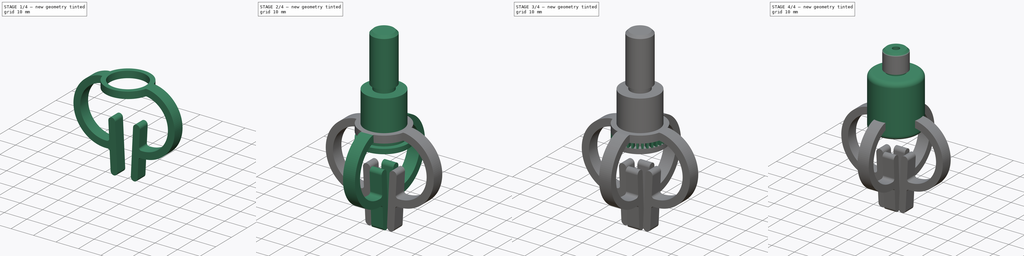
[diagram: build sequence overview — one tinted view per stage of 4, left to right]
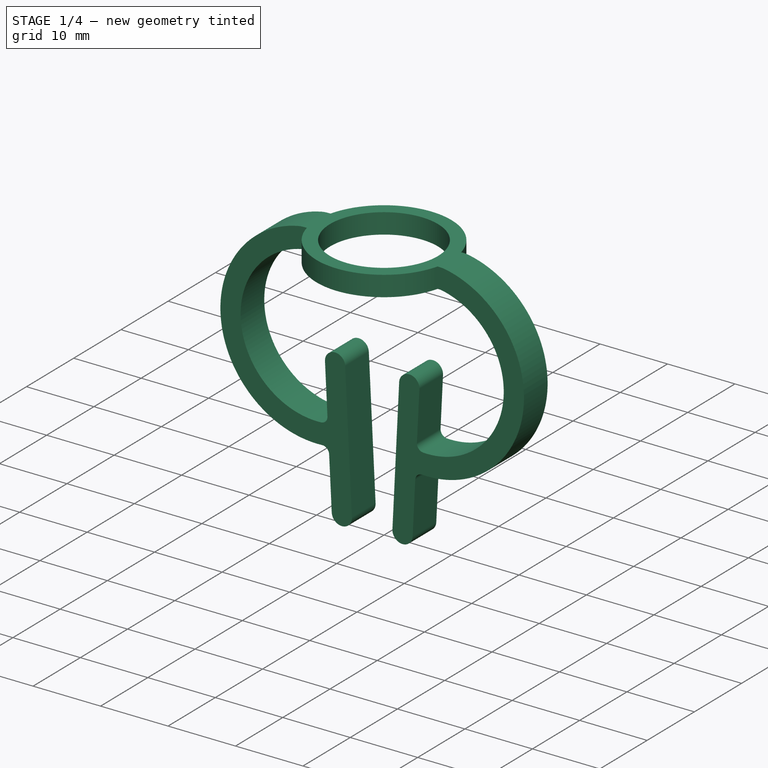
[diagram: stage 1 of 4 — iso view after this stage's code; geometry added in this stage tinted green]
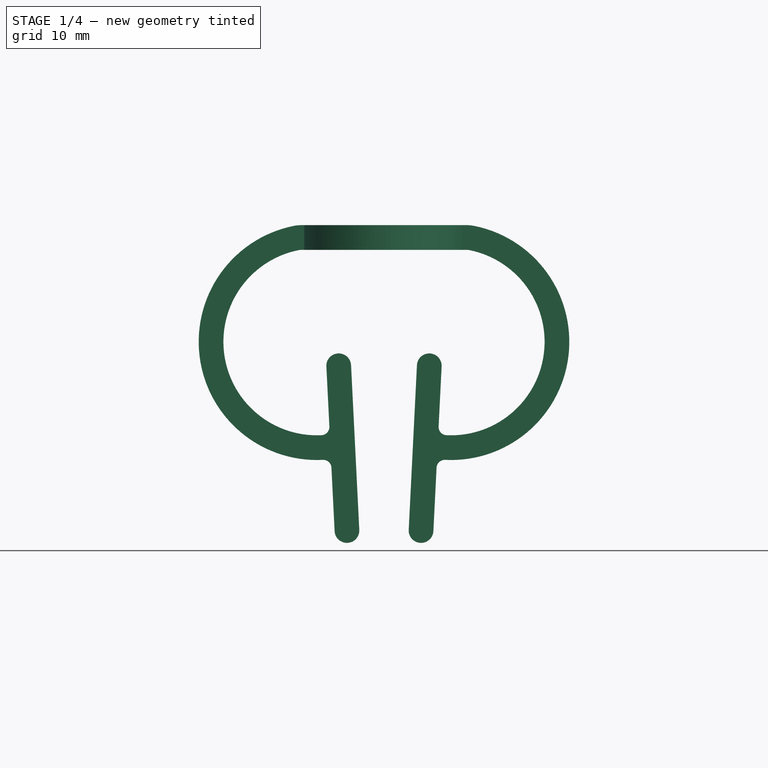
[diagram: stage 1 of 4 — front view after this stage's code; geometry added in this stage tinted green]
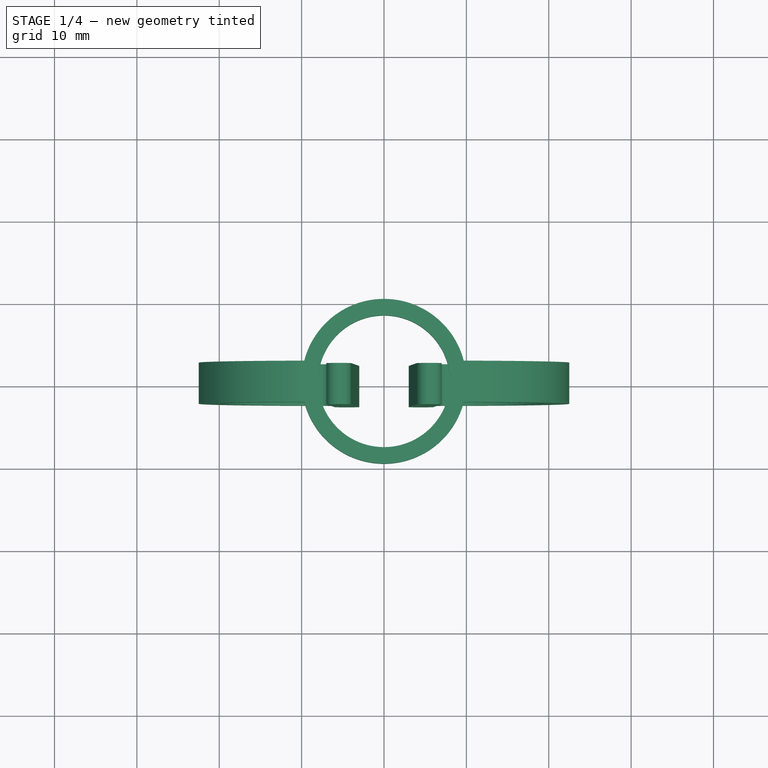
[diagram: stage 1 of 4 — top view after this stage's code; geometry added in this stage tinted green]
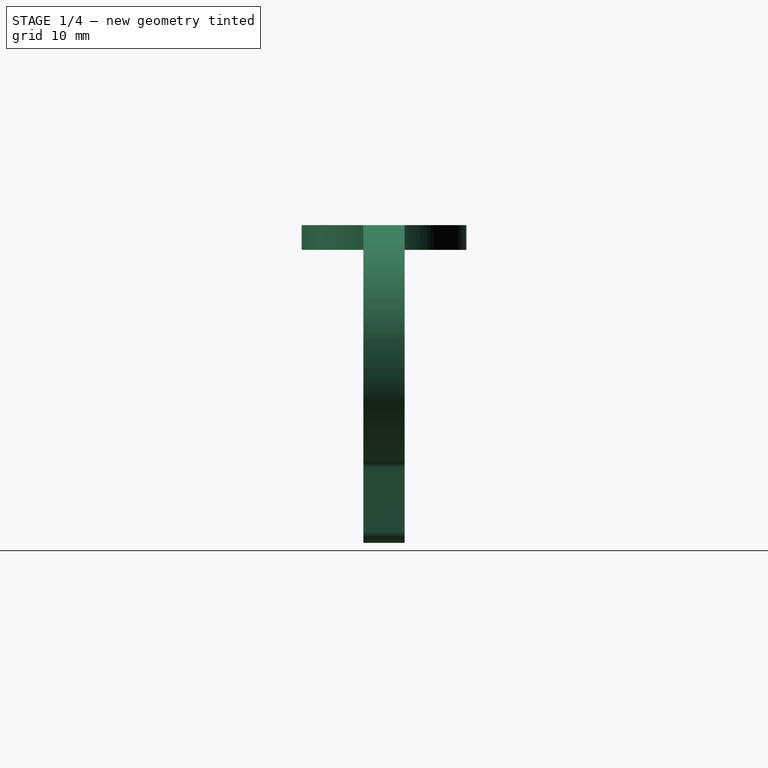
[diagram: stage 1 of 4 — right view after this stage's code; geometry added in this stage tinted green]
FCSTD DOCUMENT  (FreeCAD 1.0R39109 (Git))
Label: press machin adapters
License: All rights reserved
LicenseURL: https://en.wikipedia.org/wiki/All_rights_reserved
objects: Sketcher::SketchObject×6, PartDesign::Pad×4, PartDesign::Revolution×3, PartDesign::Body×3, PartDesign::PolarPattern×2, PartDesign::Mirrored×2, PartDesign::SubShapeBinder×1, App::DocumentObjectGroup×1
note: 45 computed .brp shape members not serialized (recipe doc carries the construction recipe); baked Part::Feature solids carry a one-line shape summary decoded from their .brp

FEATURE [PartDesign::Body] Body002  label="leather punch arbor"
  AllowCompound = true
  Group = -> [Sketch001,Revolution001,Sketch002,Pad,PolarPattern]
  Origin = -> Origin002
  Tip = -> PolarPattern
FEATURE [PartDesign::SubShapeBinder] Binder
  BindCopyOnChange = 0
  BindMode = 0
  ClaimChildren = false
  Context = -> Body003 [Binder.]
  Fuse = false
  MakeFace = true
  OffsetFill = false
  OffsetIntersection = false
  OffsetJoinType = 0
  OffsetOpenResult = false
  PartialLoad = false
  Placement = pos=(0,0,2) rot=(0,0,1;0.087266rad)
  Refine = true
  Relative = true
  Support = -> [Body002[Sketch002.]]
  _Version = 2
FEATURE [Sketcher::SketchObject] Sketch003
  ArcFitTolerance = 1e-06
  AttachmentSupport = -> [XZ_Plane003]
  FullyConstrained = true
  MakeInternals = false
  MapMode = 5
  Placement = pos=(0,0,0) rot=(1,0,0;1.5708rad)
  sketch-geometry (4):
    g0: LineSegment StartX=8 StartY=7 StartZ=0 EndX=8 EndY=4 EndZ=0
    g1: LineSegment StartX=8 StartY=4 StartZ=0 EndX=10 EndY=4 EndZ=0
    g2: LineSegment StartX=10 StartY=4 StartZ=0 EndX=10 EndY=7 EndZ=0
    g3: LineSegment StartX=10 StartY=7 StartZ=0 EndX=8 EndY=7 EndZ=0
  constraints (12):
    c: Coincident(g0,g1)
    c: Coincident(g1,g2)
    c: Coincident(g2,g3)
    c: Coincident(g3,g0)
    c: Vertical(g0)
    c: Vertical(g2)
    c: Horizontal(g1)
    c: Horizontal(g3)
    c: DistanceX(g-1,g0) = 8
    c: DistanceY(g2,g2) = 3
    c: DistanceX(g-1,g2) = 10
    c: DistanceY(g-1,g0) = 4
FEATURE [PartDesign::Revolution] Revolution002
  Angle = 360
  Angle2 = 60
  Axis = (0,2e-16,1)
  Base = (0,0,0)
  Placement = pos=(0,0,0) rot=(1,0,0;1.5708rad)
  Profile = -> Sketch003
  ReferenceAxis = -> Sketch003 [V_Axis]
  Refine = true
  Reversed = true
  Suppressed = false
  Type = 0
FEATURE [Sketcher::SketchObject] Sketch004
  ArcFitTolerance = 1e-06
  AttachmentSupport = -> [XZ_Plane003]
  ExternalGeometry = -> [Sketch003]
  FullyConstrained = true
  MakeInternals = false
  MapMode = 5
  Placement = pos=(0,0,0) rot=(1,0,0;1.5708rad)
  sketch-geometry (18):
    g0: ArcOfCircle CenterX=8.14673 CenterY=-7.16527 CenterZ=0 NormalX=0 NormalY=0 NormalZ=1 AngleXU=0 Radius=14.3508 StartAngle=4.66243 EndAngle=7.65447
    g1: ArcOfCircle [constr] CenterX=7.505 CenterY=-20 CenterZ=0 NormalX=0 NormalY=0 NormalZ=1 AngleXU=0 Radius=1.5 StartAngle=1.52084 EndAngle=4.66243
    g2: ArcOfCircle CenterX=8.14673 CenterY=-7.16527 CenterZ=0 NormalX=0 NormalY=0 NormalZ=1 AngleXU=0 Radius=11.3508 StartAngle=4.66243 EndAngle=7.65447
    g3: ArcOfCircle CenterX=5.49813 CenterY=-10.0749 CenterZ=0 NormalX=0 NormalY=0 NormalZ=1 AngleXU=0 Radius=1.5 StartAngle=6.23323 EndAngle=9.37482
    g4: ArcOfCircle CenterX=4.49813 CenterY=-30.0749 CenterZ=0 NormalX=0 NormalY=0 NormalZ=1 AngleXU=0 Radius=1.5 StartAngle=3.09163 EndAngle=6.23323
    g5: LineSegment [constr] StartX=6.99626 StartY=-10.1498 StartZ=0 EndX=5.99626 EndY=-30.1498 EndZ=0
    g6: LineSegment StartX=4 StartY=-10 StartZ=0 EndX=3 EndY=-30 EndZ=0
    g7: LineSegment [constr] StartX=3 StartY=-30 StartZ=0 EndX=4 EndY=-30 EndZ=0
    g8: LineSegment [constr] StartX=4 StartY=-30 StartZ=0 EndX=4 EndY=-10 EndZ=0
    g9: ArcOfCircle CenterX=7.38015 CenterY=-22.4969 CenterZ=0 NormalX=0 NormalY=0 NormalZ=1 AngleXU=0 Radius=1 StartAngle=1.52084 EndAngle=3.09163
    g10: ArcOfCircle CenterX=7.62984 CenterY=-17.5031 CenterZ=0 NormalX=0 NormalY=0 NormalZ=1 AngleXU=0 Radius=1 StartAngle=3.09163 EndAngle=4.66243
    g11: LineSegment StartX=6.63109 StartY=-17.4532 StartZ=0 EndX=6.99626 EndY=-10.1498 EndZ=0
    g12: LineSegment StartX=6.3814 StartY=-22.4469 StartZ=0 EndX=5.99626 EndY=-30.1498 EndZ=0
    g13: LineSegment StartX=8 StartY=4 StartZ=0 EndX=8 EndY=7 EndZ=0
    g14: LineSegment StartX=8 StartY=7 StartZ=0 EndX=10 EndY=7 EndZ=0
    g15: LineSegment StartX=10 StartY=4 StartZ=0 EndX=8 EndY=4 EndZ=0
    g16: ArcOfCircle CenterX=10 CenterY=2 CenterZ=0 NormalX=0 NormalY=0 NormalZ=1 AngleXU=0 Radius=2 StartAngle=1.37128 EndAngle=1.5708
    g17: ArcOfCircle CenterX=10 CenterY=2 CenterZ=0 NormalX=0 NormalY=0 NormalZ=1 AngleXU=0 Radius=5 StartAngle=1.37128 EndAngle=1.5708
  constraints (44):
    c: Coincident(g0,g2)
    c: Tangent(g2,g1) = 1.5708
    c: Tangent(g0,g1) = -1.5708
    c: Tangent(g3,g5) = 1.5708
    c: Tangent(g3,g6) = -1.5708
    c: Tangent(g4,g5) = 1.5708
    c: Tangent(g4,g6) = -1.5708
    c: Equal(g3,g4)
    c: Distance(g6,g-1) = 10
    c: Distance(g4,g-1) = 30
    c: Coincident(g7,g4)
    c: Horizontal(g7)
    c: Coincident(g8,g7)
    c: Coincident(g8,g3)
    c: Vertical(g8)
    c: Distance(g7,g7) = 1
    c: DistanceY(g1,g-1) = 20
    c: Coincident(g10,g1)
    c: Tangent(g10,g5) = -1.5708
    c: Tangent(g10,g2)
    c: Tangent(g9,g0) = 1.5708
    c: Tangent(g9,g5) = -1.5708
    c: Equal(g9,g10)
    c: Radius(g9) = 1
    c: Coincident(g11,g10)
    c: Coincident(g11,g3)
    c: Coincident(g12,g4)
    c: Coincident(g12,g9)
    c: Distance(g4,g-2) = 3
    c: Radius(g1) = 1.5
    c: Vertical(g13)
    c: Coincident(g14,g13)
    c: Coincident(g14,g-4)
    c: Coincident(g15,g-3)
    c: Coincident(g15,g13)
    c: Horizontal(g15)
    c: Horizontal(g14)
    c: Radius(g3) = 1.5
    c: Tangent(g17,g14) = 1.5708
    c: Tangent(g17,g0) = -1.5708
    c: Tangent(g16,g15) = -1.5708
    c: Tangent(g16,g2) = -1.5708
    c: Radius(g16) = 2
    c: Distance(g14,g14) = 2
FEATURE [PartDesign::Pad] Pad001
  BaseFeature = -> Revolution002
  Direction = (0,-1,2e-16)
  Length = 5
  Length2 = 10
  Midplane = true
  Placement = pos=(0,0,0) rot=(1,0,0;1.5708rad)
  Profile = -> Sketch004
  ReferenceAxis = -> Sketch004 [N_Axis]
  Refine = true
  Suppressed = false
  Type = 0
FEATURE [PartDesign::Mirrored] Mirrored
  BaseFeature = -> Pad001
  MirrorPlane = -> Sketch004 [V_Axis]
  Originals = -> [Pad001]
  Placement = pos=(0,0,0) rot=(1,0,0;1.5708rad)
  Refine = true
  Suppressed = false
  TransformMode = 0
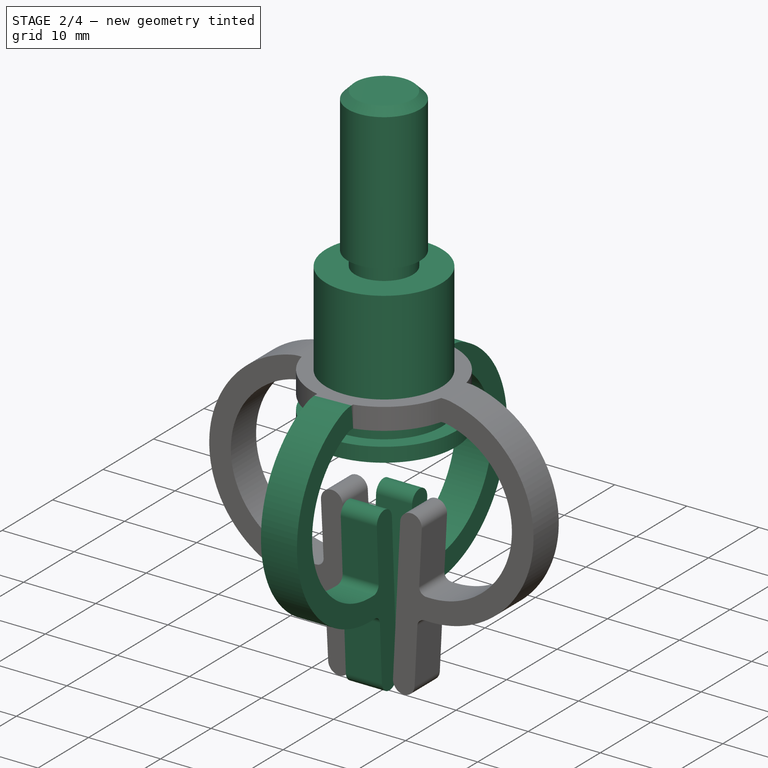
[diagram: stage 2 of 4 — iso view after this stage's code; geometry added in this stage tinted green]
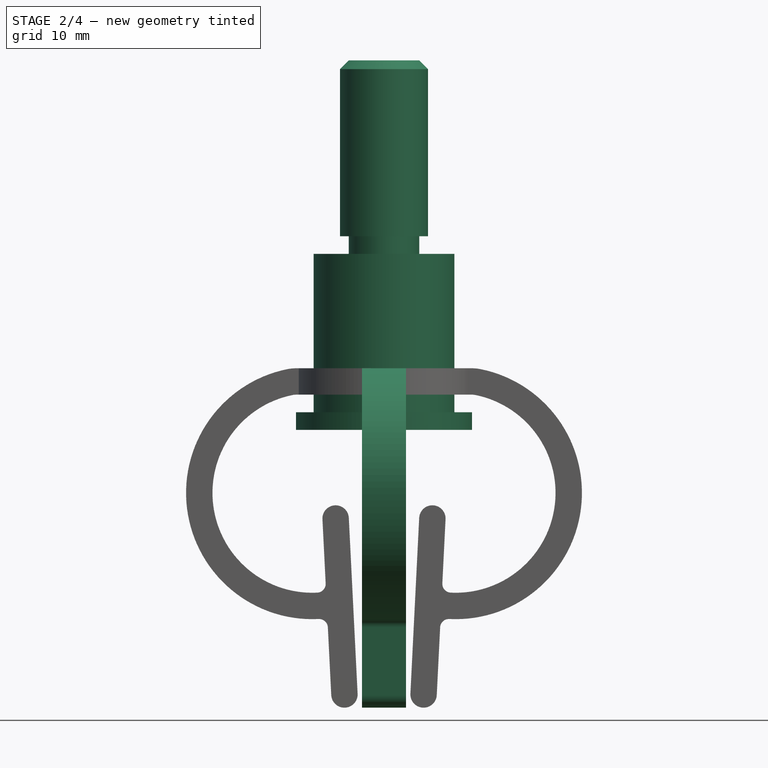
[diagram: stage 2 of 4 — front view after this stage's code; geometry added in this stage tinted green]
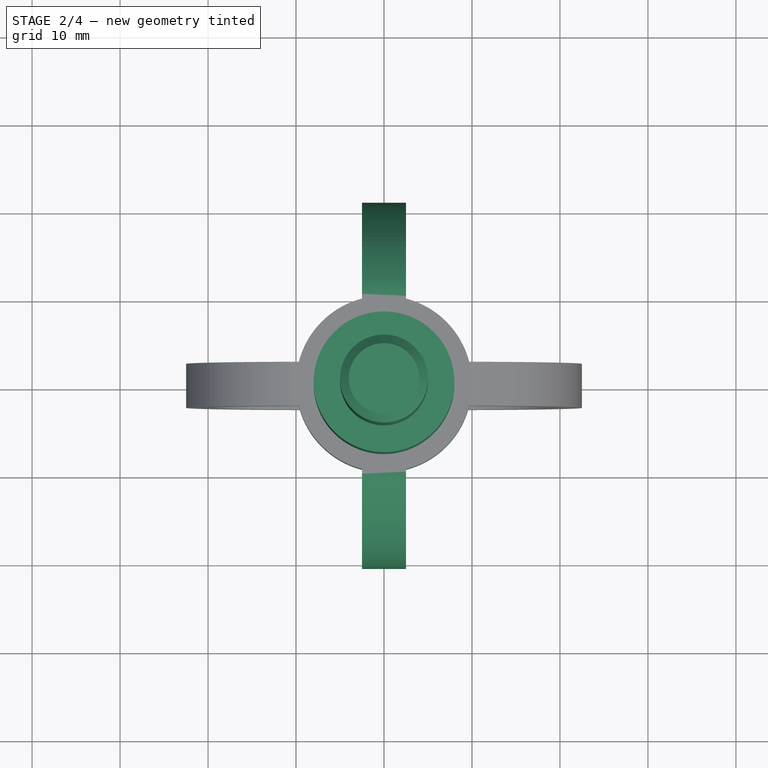
[diagram: stage 2 of 4 — top view after this stage's code; geometry added in this stage tinted green]
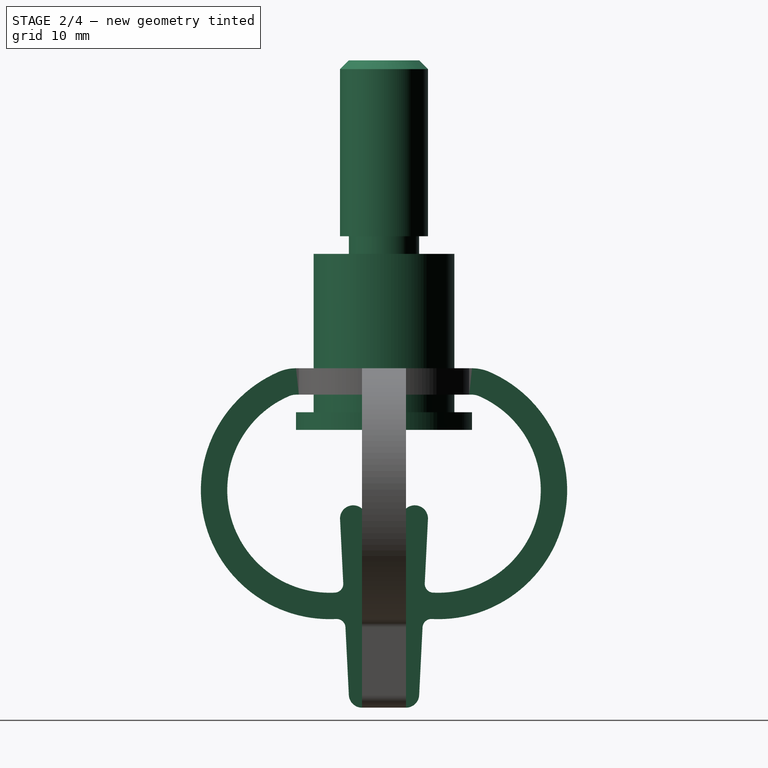
[diagram: stage 2 of 4 — right view after this stage's code; geometry added in this stage tinted green]
FEATURE [PartDesign::Body] Body  label="hand drill"
  AllowCompound = false
  Group = -> [Sketch,Revolution]
  Origin = -> Origin
  Tip = -> Revolution
FEATURE [Sketcher::SketchObject] Sketch001
  ArcFitTolerance = 1e-06
  AttachmentSupport = -> [XZ_Plane002]
  FullyConstrained = true
  MakeInternals = false
  MapMode = 5
  Placement = pos=(0,0,0) rot=(1,0,0;1.5708rad)
  sketch-geometry (11):
    g0: LineSegment StartX=0 StartY=42 StartZ=0 EndX=4 EndY=42 EndZ=0
    g1: LineSegment StartX=4 StartY=42 StartZ=0 EndX=5 EndY=41 EndZ=0
    g2: LineSegment StartX=5 StartY=41 StartZ=0 EndX=5 EndY=22 EndZ=0
    g3: LineSegment StartX=5 StartY=22 StartZ=0 EndX=4 EndY=22 EndZ=0
    g4: LineSegment StartX=4 StartY=22 StartZ=0 EndX=4 EndY=20 EndZ=0
    g5: LineSegment StartX=0 StartY=0 StartZ=0 EndX=0 EndY=42 EndZ=0
    g6: LineSegment StartX=0 StartY=0 StartZ=0 EndX=10 EndY=0 EndZ=0
    g7: LineSegment StartX=4 StartY=20 StartZ=0 EndX=8 EndY=20 EndZ=0
    g8: LineSegment StartX=8 StartY=20 StartZ=0 EndX=8 EndY=2 EndZ=0
    g9: LineSegment StartX=8 StartY=2 StartZ=0 EndX=10 EndY=2 EndZ=0
    g10: LineSegment StartX=10 StartY=2 StartZ=0 EndX=10 EndY=0 EndZ=0
  constraints (33):
    c: PointOnObject(g0,g-2)
    c: Coincident(g0,g1)
    c: Coincident(g1,g2)
    c: Vertical(g2)
    c: Coincident(g2,g3)
    c: Coincident(g3,g4)
    c: Horizontal(g0)
    c: Horizontal(g3)
    c: Vertical(g4)
    c: DistanceX(g0,g0) = 4
    c: Angle(g1) = -0.785398
    c: Horizontal(g6)
    c: Horizontal(g7)
    c: Distance(g2,g0) = 20
    c: Coincident(g4,g7)
    c: Coincident(g5,g0)
    c: PointOnObject(g5,g-2)
    c: Distance(g3,g-2) = 4
    c: Distance(g2,g-2) = 5
    c: PointOnObject(g6,g-1)
    c: DistanceY(g6,g7) = 20
    c: DistanceX(g6,g6) = 10
    c: Coincident(g6,g5)
    c: DistanceY(g4,g4) = 2
    c: Coincident(g8,g7)
    c: Vertical(g8)
    c: Coincident(g9,g8)
    c: Coincident(g10,g9)
    c: Vertical(g10)
    c: Horizontal(g9)
    c: Coincident(g6,g10)
    c: Distance(g9,g9) = 2
    c: DistanceY(g10,g10) = 2
FEATURE [PartDesign::Revolution] Revolution001
  Angle = 360
  Angle2 = 60
  Axis = (0,2e-16,1)
  Base = (0,0,0)
  Placement = pos=(0,0,0) rot=(1,0,0;1.5708rad)
  Profile = -> Sketch001
  ReferenceAxis = -> Sketch001 [V_Axis]
  Refine = true
  Reversed = true
  Suppressed = false
  Type = 0
FEATURE [Sketcher::SketchObject] Sketch005
  ArcFitTolerance = 1e-06
  AttachmentSupport = -> [YZ_Plane003]
  FullyConstrained = true
  MakeInternals = false
  MapMode = 5
  Placement = pos=(0,0,0) rot=(0.57735,0.57735,0.57735;2.0944rad)
  sketch-geometry (18):
    g0: ArcOfCircle CenterX=-3.49813 CenterY=-10.0749 CenterZ=0 NormalX=0 NormalY=0 NormalZ=1 AngleXU=0 Radius=1.5 StartAngle=0.0499584 EndAngle=3.19155
    g1: ArcOfCircle CenterX=-2.49813 CenterY=-30.0749 CenterZ=0 NormalX=0 NormalY=0 NormalZ=1 AngleXU=0 Radius=1.5 StartAngle=3.19155 EndAngle=6.33314
    g2: LineSegment StartX=-2 StartY=-10 StartZ=0 EndX=-1 EndY=-30 EndZ=0
    g3: LineSegment [constr] StartX=-4.99626 StartY=-10.1498 StartZ=0 EndX=-3.99626 EndY=-30.1498 EndZ=0
    g4: ArcOfCircle CenterX=-6.16198 CenterY=-6.86044 CenterZ=0 NormalX=0 NormalY=0 NormalZ=1 AngleXU=0 Radius=14.656 StartAngle=1.97956 EndAngle=4.76235
    g5: ArcOfCircle [constr] CenterX=-5.505 CenterY=-20 CenterZ=0 NormalX=0 NormalY=0 NormalZ=1 AngleXU=0 Radius=1.5 StartAngle=4.76235 EndAngle=7.90394
    g6: ArcOfCircle CenterX=-6.16198 CenterY=-6.86044 CenterZ=0 NormalX=0 NormalY=0 NormalZ=1 AngleXU=0 Radius=11.656 StartAngle=1.97956 EndAngle=4.76235
    g7: LineSegment [constr] StartX=-2 StartY=-10 StartZ=0 EndX=-2 EndY=-30 EndZ=0
    g8: LineSegment [constr] StartX=-2 StartY=-30 StartZ=0 EndX=-1 EndY=-30 EndZ=0
    g9: ArcOfCircle CenterX=-5.38015 CenterY=-22.4969 CenterZ=0 NormalX=0 NormalY=0 NormalZ=1 AngleXU=0 Radius=1 StartAngle=0.0499584 EndAngle=1.62076
    g10: ArcOfCircle CenterX=-5.62984 CenterY=-17.5031 CenterZ=0 NormalX=0 NormalY=0 NormalZ=1 AngleXU=0 Radius=1 StartAngle=4.76235 EndAngle=6.33314
    g11: LineSegment StartX=-8 StartY=4 StartZ=0 EndX=-10 EndY=4 EndZ=0
    g12: LineSegment StartX=-8 StartY=7 StartZ=0 EndX=-10 EndY=7 EndZ=0
    g13: LineSegment StartX=-8 StartY=7 StartZ=0 EndX=-8 EndY=4 EndZ=0
    g14: ArcOfCircle CenterX=-10 CenterY=2 CenterZ=0 NormalX=0 NormalY=0 NormalZ=1 AngleXU=0 Radius=5 StartAngle=1.5708 EndAngle=1.97956
    g15: ArcOfCircle CenterX=-10 CenterY=2 CenterZ=0 NormalX=0 NormalY=0 NormalZ=1 AngleXU=0 Radius=2 StartAngle=1.5708 EndAngle=1.97956
    g16: LineSegment StartX=-4.63109 StartY=-17.4532 StartZ=0 EndX=-4.99626 EndY=-10.1498 EndZ=0
    g17: LineSegment StartX=-4.3814 StartY=-22.4469 StartZ=0 EndX=-3.99626 EndY=-30.1498 EndZ=0
  constraints (44):
    c: Tangent(g0,g2) = 1.5708
    c: Tangent(g0,g3) = -1.5708
    c: Tangent(g1,g2) = 1.5708
    c: Tangent(g1,g3) = -1.5708
    c: Equal(g0,g1)
    c: Coincident(g4,g6)
    c: Tangent(g6,g5) = 1.5708
    c: Tangent(g4,g5) = -1.5708
    c: DistanceY(g5,g-1) = 20
    c: Distance(g0,g-1) = 10
    c: Distance(g1,g-1) = 30
    c: Coincident(g7,g0)
    c: Vertical(g7)
    c: Coincident(g8,g7)
    c: Coincident(g8,g1)
    c: Horizontal(g8)
    c: Distance(g8,g8) = 1
    c: Coincident(g10,g5)
    c: Tangent(g10,g6)
    c: Tangent(g10,g3) = 1.5708
    c: Tangent(g9,g4) = 1.5708
    c: Tangent(g9,g3) = 1.5708
    c: Equal(g9,g10)
    c: Radius(g10) = 1
    c: Distance(g1,g-2) = 1
    c: Radius(g0) = 1.5
    c: Radius(g5) = 1.5
    c: PointOnObject(g11,g-4)
    c: PointOnObject(g12,g-3)
    c: Coincident(g13,g12)
    c: Coincident(g13,g11)
    c: Vertical(g13)
    c: Coincident(g-4,g11)
    c: Tangent(g14,g4) = -1.5708
    c: Tangent(g12,g14) = -1.5708
    c: Coincident(g12,g-3)
    c: Tangent(g15,g11) = -1.5708
    c: Tangent(g15,g6) = -1.5708
    c: Radius(g15) = 2
    c: Distance(g12,g12) = 2
    c: Coincident(g16,g0)
    c: Coincident(g16,g10)
    c: Coincident(g17,g9)
    c: Coincident(g17,g1)
FEATURE [PartDesign::Pad] Pad002
  BaseFeature = -> Mirrored
  Direction = (1,0,0)
  Length = 5
  Length2 = 10
  Midplane = true
  Placement = pos=(0,0,0) rot=(1,0,0;1.5708rad)
  Profile = -> Sketch005
  ReferenceAxis = -> Sketch005 [N_Axis]
  Refine = true
  Suppressed = false
  Type = 0
FEATURE [PartDesign::Mirrored] Mirrored001
  BaseFeature = -> Pad002
  MirrorPlane = -> XZ_Plane003
  Originals = -> [Pad002]
  Placement = pos=(0,0,0) rot=(1,0,0;1.5708rad)
  Refine = true
  Suppressed = false
  TransformMode = 0
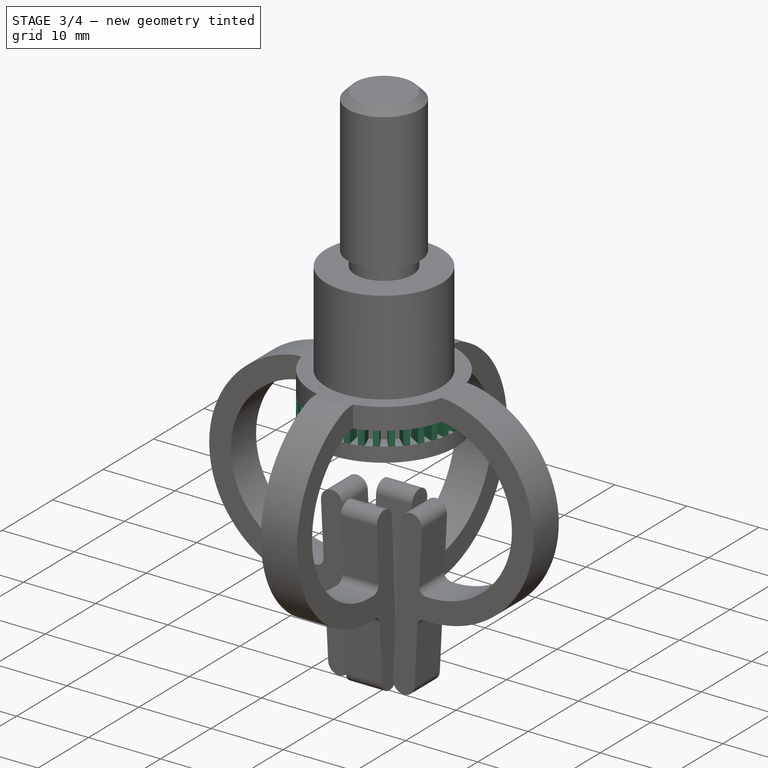
[diagram: stage 3 of 4 — iso view after this stage's code; geometry added in this stage tinted green]
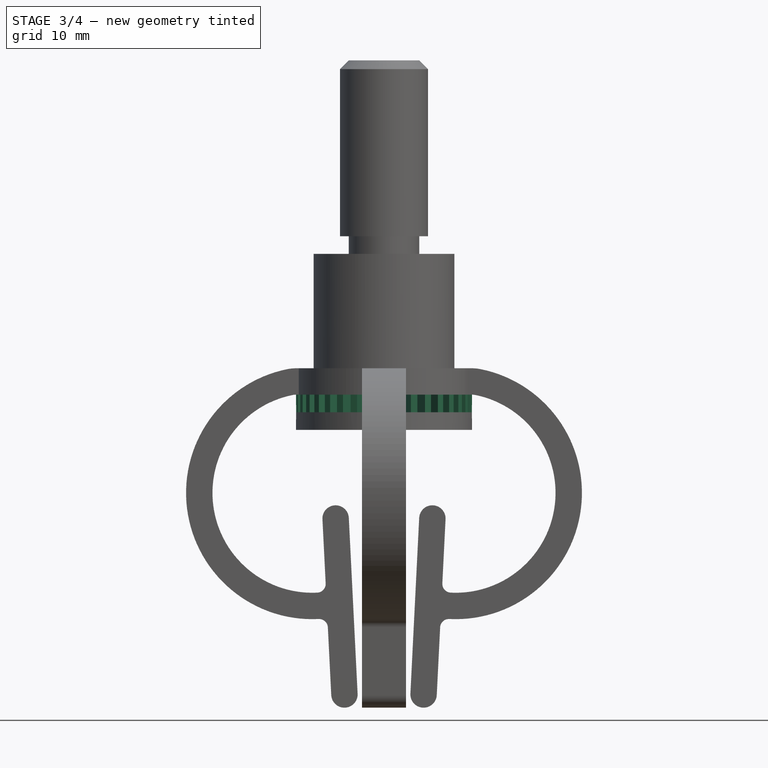
[diagram: stage 3 of 4 — front view after this stage's code; geometry added in this stage tinted green]
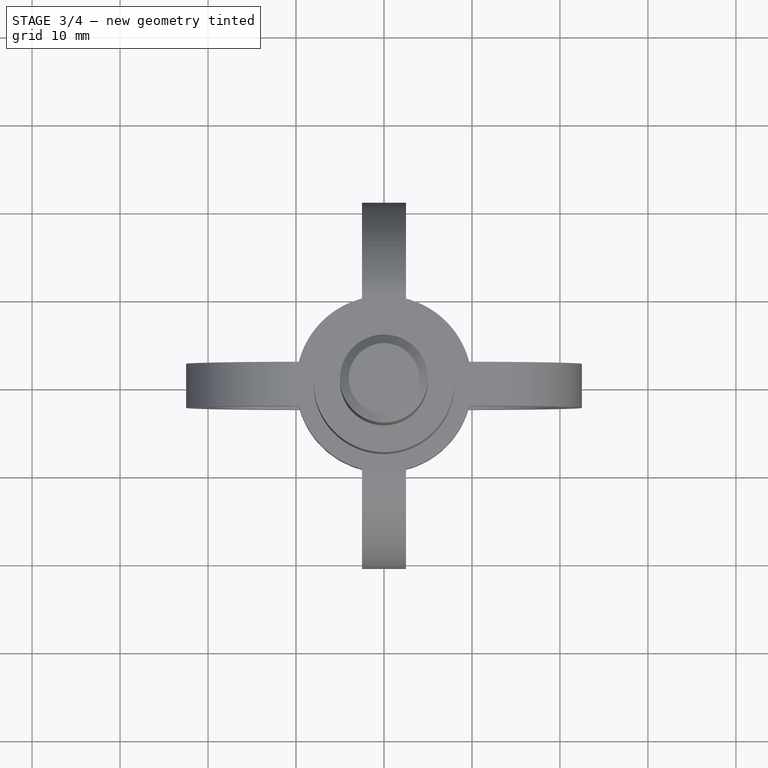
[diagram: stage 3 of 4 — top view after this stage's code; geometry added in this stage tinted green]
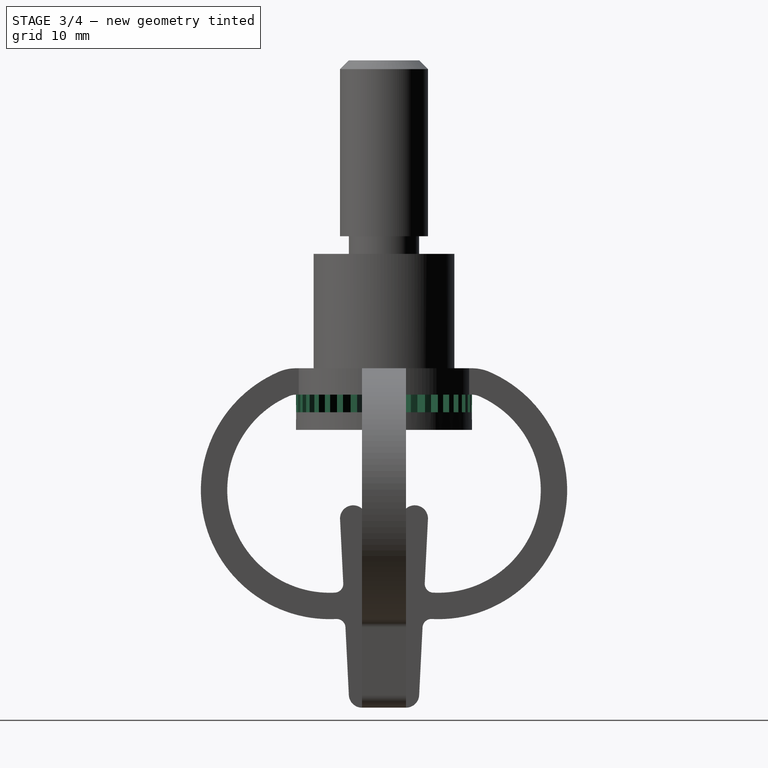
[diagram: stage 3 of 4 — right view after this stage's code; geometry added in this stage tinted green]
FEATURE [Sketcher::SketchObject] Sketch002
  ArcFitTolerance = 1e-06
  AttachmentSupport = -> [XY_Plane002]
  ExternalGeometry = -> [Sketch001]
  FullyConstrained = true
  MakeInternals = false
  MapMode = 5
  sketch-geometry (8):
    g0: Circle [constr] CenterX=0 CenterY=0 CenterZ=0 NormalX=0 NormalY=0 NormalZ=1 AngleXU=0 Radius=8
    g1: Circle [constr] CenterX=0 CenterY=0 CenterZ=0 NormalX=0 NormalY=0 NormalZ=1 AngleXU=0 Radius=10
    g2: LineSegment [constr] StartX=0 StartY=0 StartZ=0 EndX=7.99383 EndY=0.314079 EndZ=0
    g3: LineSegment [constr] StartX=0 StartY=0 StartZ=0 EndX=7.99383 EndY=-0.314079 EndZ=0
    g4: LineSegment StartX=7.99383 StartY=-0.314079 StartZ=0 EndX=9.99229 EndY=-0.392598 EndZ=0
    g5: LineSegment StartX=7.99383 StartY=0.314079 StartZ=0 EndX=9.99229 EndY=0.392598 EndZ=0
    g6: ArcOfCircle CenterX=-4.276e-13 CenterY=1.69e-14 CenterZ=0 NormalX=0 NormalY=0 NormalZ=1 AngleXU=0 Radius=8 StartAngle=6.24392 EndAngle=6.32246
    g7: ArcOfCircle CenterX=-5.329e-13 CenterY=1.79e-14 CenterZ=0 NormalX=0 NormalY=0 NormalZ=1 AngleXU=0 Radius=10 StartAngle=6.24392 EndAngle=6.32246
  constraints (22):
    c: Coincident(g0,g-1)
    c: PointOnObject(g-3,g0)
    c: Coincident(g1,g0)
    c: PointOnObject(g-4,g1)
    c: Coincident(g2,g0)
    c: PointOnObject(g2,g0)
    c: Coincident(g3,g0)
    c: PointOnObject(g3,g0)
    c: Coincident(g4,g3)
    c: PointOnObject(g4,g1)
    c: Coincident(g5,g2)
    c: PointOnObject(g5,g1)
    c: Vertical(g2,g3)
    c: Angle(g3,g2) = 0.0785398
    c: Parallel(g4,g3)
    c: Parallel(g2,g5)
    c: Coincident(g6,g2)
    c: Tangent(g6,g0) = -1.5708
    c: Horizontal(g6,g3)
    c: Coincident(g7,g5)
    c: Tangent(g7,g1) = -1.5708
    c: Horizontal(g7,g4)
FEATURE [PartDesign::Pad] Pad
  BaseFeature = -> Revolution001
  Direction = (0,0,1)
  Length = 4
  Length2 = 10
  Placement = pos=(0,0,0) rot=(1,0,0;1.5708rad)
  Profile = -> Sketch002
  ReferenceAxis = -> Sketch002 [N_Axis]
  Refine = true
  Suppressed = false
  Type = 0
FEATURE [PartDesign::PolarPattern] PolarPattern
  Angle = 360
  Axis = -> Z_Axis002
  BaseFeature = -> Pad
  Mode = 0
  Occurrences = 36
  Offset = 120
  Originals = -> [Pad]
  Placement = pos=(0,0,0) rot=(1,0,0;1.5708rad)
  Refine = true
  Suppressed = false
  TransformMode = 0
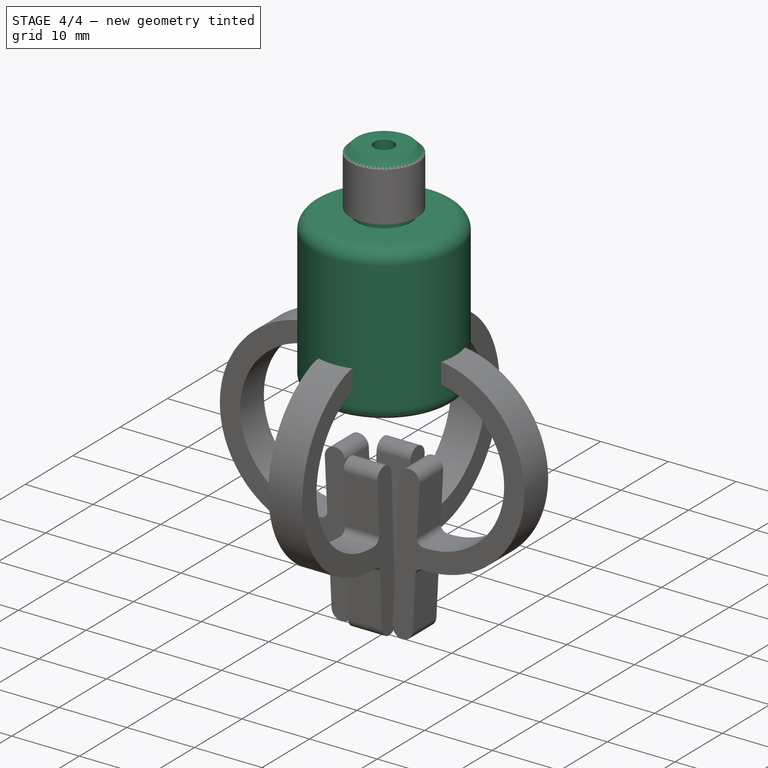
[diagram: stage 4 of 4 — iso view after this stage's code; geometry added in this stage tinted green]
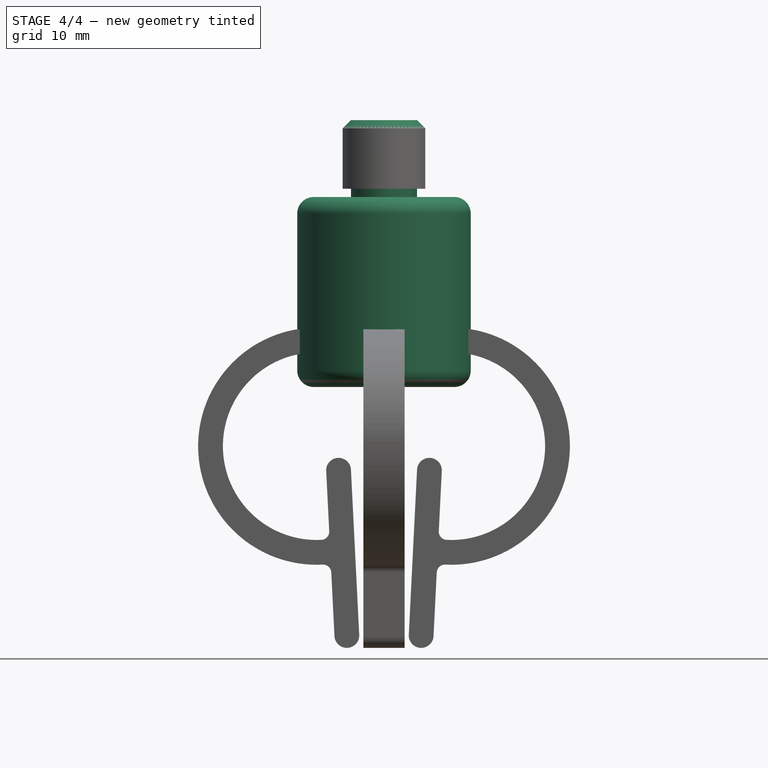
[diagram: stage 4 of 4 — front view after this stage's code; geometry added in this stage tinted green]
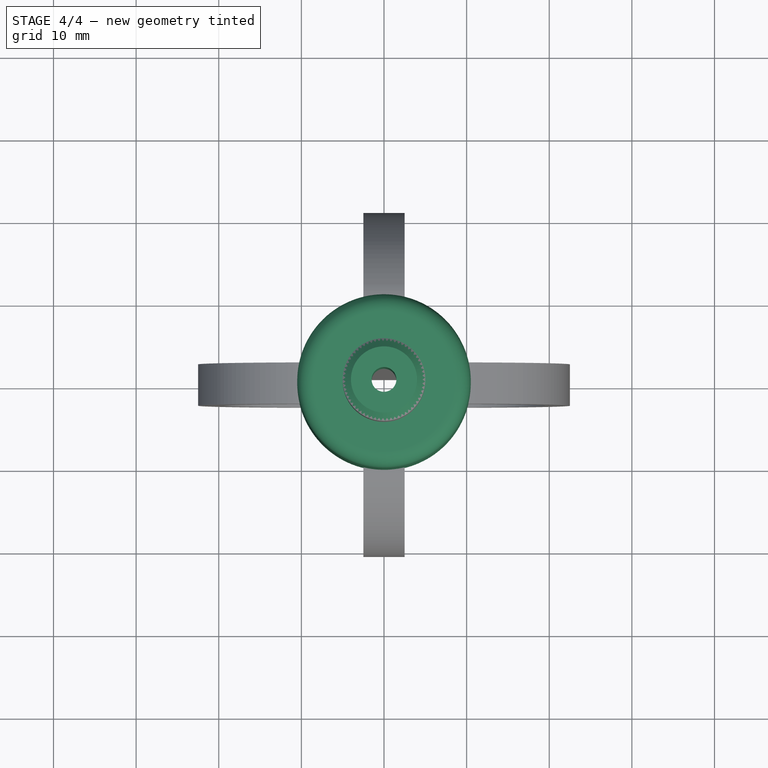
[diagram: stage 4 of 4 — top view after this stage's code; geometry added in this stage tinted green]
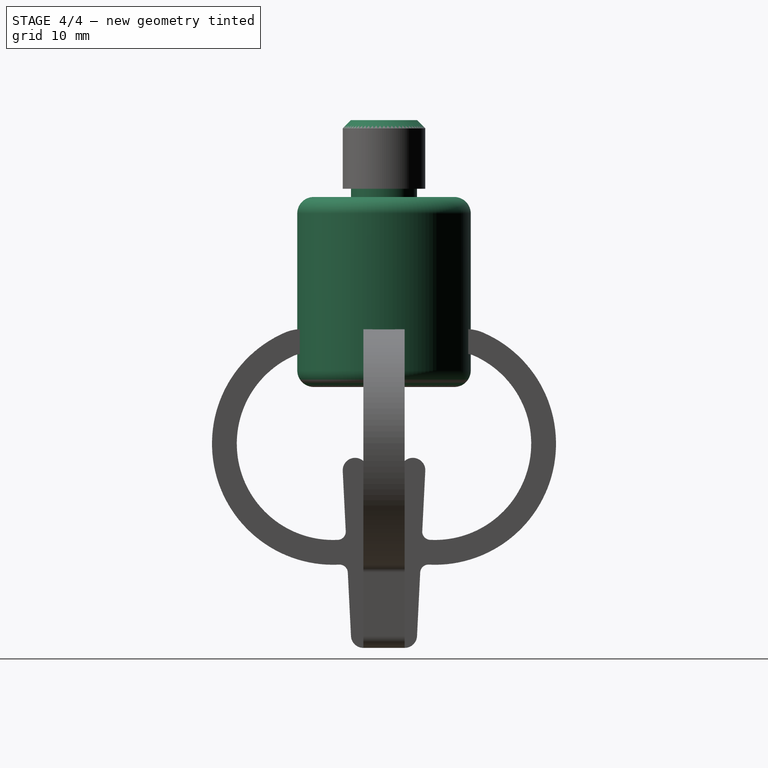
[diagram: stage 4 of 4 — right view after this stage's code; geometry added in this stage tinted green]
FEATURE [Sketcher::SketchObject] Sketch
  ArcFitTolerance = 1e-06
  AttachmentSupport = -> [XZ_Plane]
  FullyConstrained = true
  MakeInternals = false
  MapMode = 5
  Placement = pos=(0,0,0) rot=(1,0,0;1.5708rad)
  sketch-geometry (17):
    g0: LineSegment [constr] StartX=0 StartY=32.3 StartZ=0 EndX=5 EndY=32.3 EndZ=0
    g1: LineSegment [constr] StartX=5 StartY=32.3 StartZ=0 EndX=5 EndY=24 EndZ=0
    g2: LineSegment StartX=5 StartY=24 StartZ=0 EndX=4 EndY=24 EndZ=0
    g3: LineSegment StartX=4 StartY=24 StartZ=0 EndX=4 EndY=23 EndZ=0
    g4: LineSegment StartX=4 StartY=23 StartZ=0 EndX=8.5 EndY=23 EndZ=0
    g5: LineSegment StartX=10.5 StartY=21 StartZ=0 EndX=10.5 EndY=2 EndZ=0
    g6: LineSegment StartX=8.5 StartY=0 StartZ=0 EndX=7.5 EndY=0 EndZ=0
    g7: LineSegment StartX=7.5 StartY=0 StartZ=0 EndX=7.5 EndY=14 EndZ=0
    g8: ArcOfCircle CenterX=1.5 CenterY=14 CenterZ=0 NormalX=0 NormalY=0 NormalZ=1 AngleXU=0 Radius=6 StartAngle=1e-16 EndAngle=1.5708
    g9: LineSegment StartX=4 StartY=32.3 StartZ=0 EndX=5 EndY=31.3 EndZ=0
    g10: LineSegment StartX=5 StartY=31.3 StartZ=0 EndX=5 EndY=24 EndZ=0
    g11: LineSegment StartX=1.5 StartY=20 StartZ=0 EndX=1.5 EndY=32.3 EndZ=0
    g12: LineSegment StartX=1.5 StartY=32.3 StartZ=0 EndX=4 EndY=32.3 EndZ=0
    g13: ArcOfCircle CenterX=8.5 CenterY=21 CenterZ=0 NormalX=0 NormalY=0 NormalZ=1 AngleXU=0 Radius=2 StartAngle=-9e-16 EndAngle=1.5708
    g14: GeomPoint [constr] X=10.5 Y=23 Z=0
    g15: ArcOfCircle CenterX=8.5 CenterY=2 CenterZ=0 NormalX=0 NormalY=0 NormalZ=1 AngleXU=0 Radius=2 StartAngle=4.71239 EndAngle=6.28319
    g16: GeomPoint [constr] X=10.5 Y=0 Z=0
  constraints (47):
    c: PointOnObject(g0,g-2)
    c: Horizontal(g0)
    c: Coincident(g0,g1)
    c: Vertical(g1)
    c: Coincident(g1,g2)
    c: Coincident(g2,g3)
    c: Coincident(g3,g4)
    c: Horizontal(g4)
    c: Vertical(g5)
    c: Coincident(g6,g7)
    c: Vertical(g7)
    c: Vertical(g3)
    c: Horizontal(g2)
    c: Horizontal(g6)
    c: Distance(g0,g0) = 5
    c: Distance(g3,g3) = 1
    c: Distance(g6,g-2) = 7.5
    c: PointOnObject(g6,g-1)
    c: DistanceX(g6,g16) = 3
    c: Tangent(g7,g8) = -1.5708
    c: Radius(g8) = 6
    c: PointOnObject(g9,g0)
    c: PointOnObject(g9,g1)
    c: DistanceX(g0,g9) = 4
    c: Angle(g9) = -0.785398
    c: Coincident(g10,g9)
    c: Coincident(g10,g1)
    c: Vertical(g8,g8)
    c: Distance(g8,g-1) = 20
    c: Distance(g8,g4) = 3
    c: Coincident(g11,g8)
    c: PointOnObject(g11,g0)
    c: Vertical(g11)
    c: Coincident(g12,g11)
    c: Coincident(g12,g9)
    c: Distance(g0,g4) = 9.3
    c: PointOnObject(g14,g4)
    c: PointOnObject(g14,g5)
    c: Tangent(g4,g13) = 1.5708
    c: Tangent(g5,g13) = 1.5708
    c: Radius(g13) = 2
    c: PointOnObject(g16,g5)
    c: PointOnObject(g16,g6)
    c: Tangent(g5,g15) = 1.5708
    c: Tangent(g6,g15) = 1.5708
    c: Radius(g15) = 2
    c: Distance(g2,g2) = 1
FEATURE [PartDesign::Revolution] Revolution
  Angle = 360
  Angle2 = 60
  Axis = (0,2e-16,1)
  Base = (0,0,0)
  Placement = pos=(0,0,0) rot=(1,0,0;1.5708rad)
  Profile = -> Sketch
  ReferenceAxis = -> Sketch [V_Axis]
  Refine = true
  Reversed = true
  Suppressed = false
  Type = 0
FEATURE [PartDesign::Pad] Pad003
  BaseFeature = -> Mirrored001
  Direction = (0,0,1)
  Length = 2
  Length2 = 10
  Placement = pos=(0,0,0) rot=(1,0,0;1.5708rad)
  Profile = -> Binder
  Refine = true
  Suppressed = false
  Type = 0
FEATURE [PartDesign::PolarPattern] PolarPattern001
  Angle = 360
  Axis = -> Z_Axis003
  BaseFeature = -> Pad003
  Mode = 0
  Occurrences = 36
  Offset = 120
  Originals = -> [Pad003]
  Placement = pos=(0,0,0) rot=(1,0,0;1.5708rad)
  Refine = true
  Suppressed = false
  TransformMode = 0
FEATURE [PartDesign::Body] Body003  label="leather punch 11"
  AllowCompound = true
  Group = -> [Revolution002,Sketch003,Sketch004,Pad001,Mirrored,Sketch005,Pad002,Mirrored001,Binder,Pad003,PolarPattern001]
  Origin = -> Origin003
  Tip = -> PolarPattern001
FEATURE [App::DocumentObjectGroup] Group  label="leather punch"
  Group = -> [Body002,Body003]
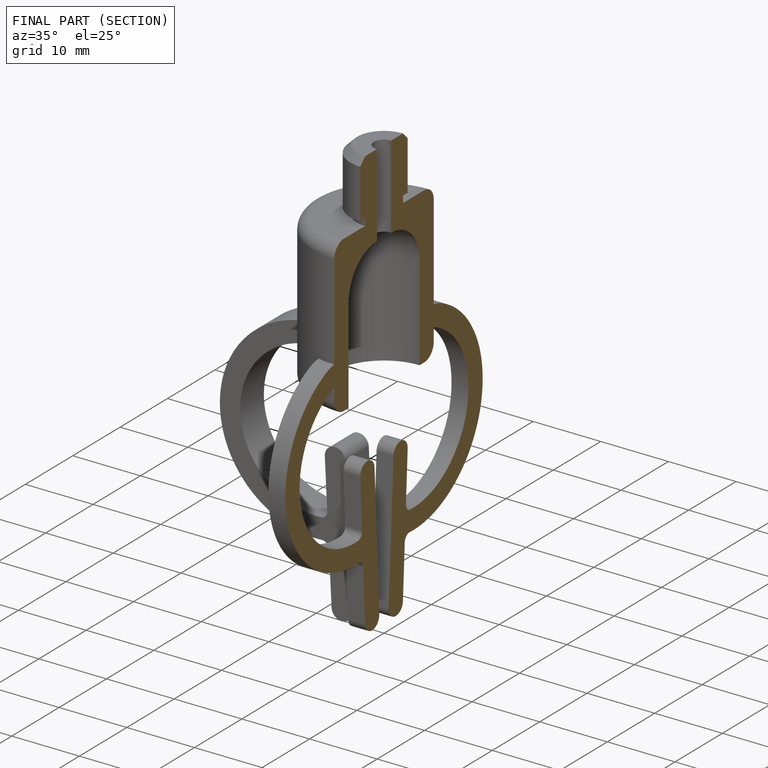
[diagram: finished part — half-section view (interior)]
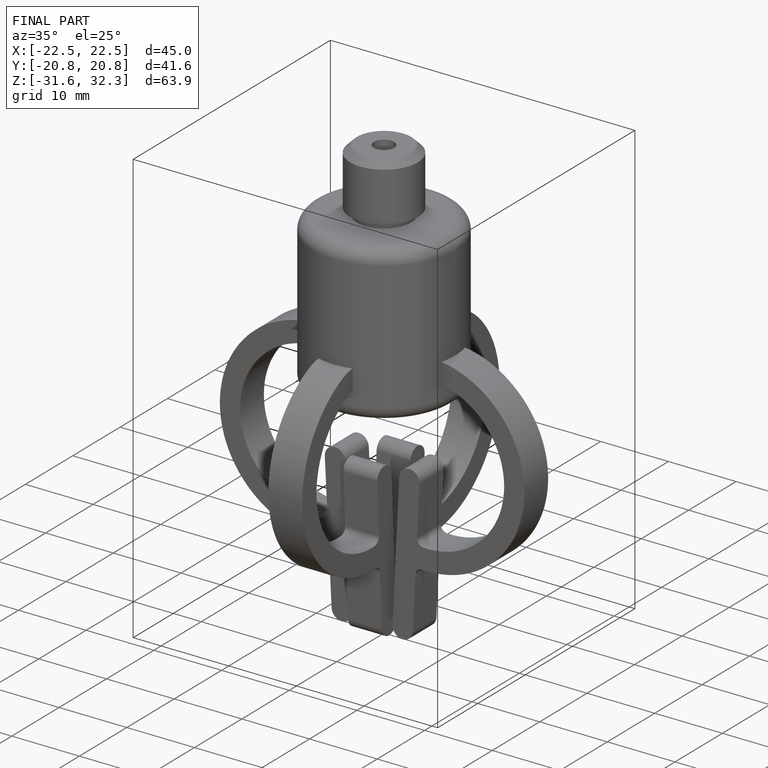
[diagram: finished part — iso view with bounding-box wireframe]
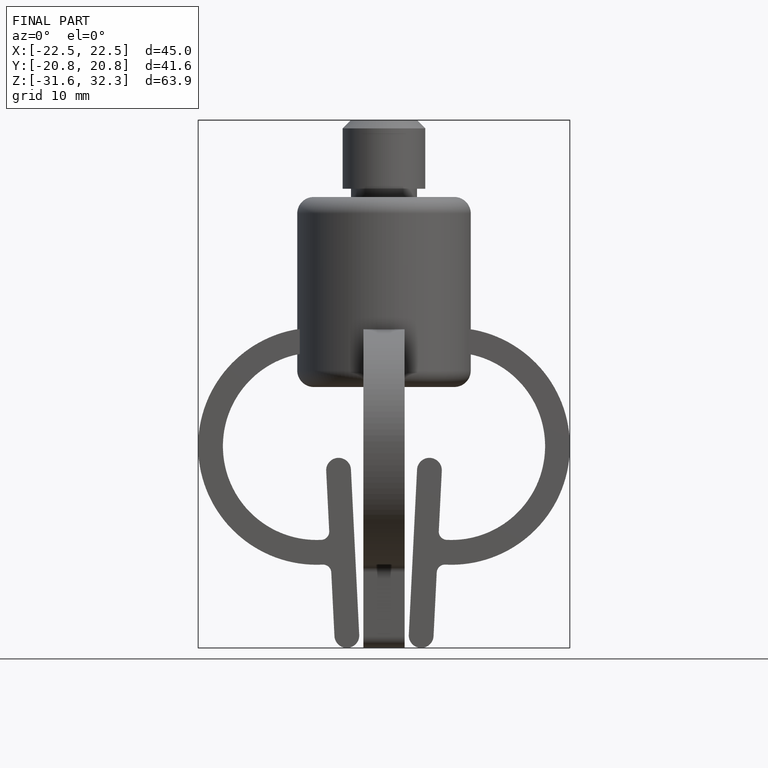
[diagram: finished part — front view with bounding-box wireframe]
